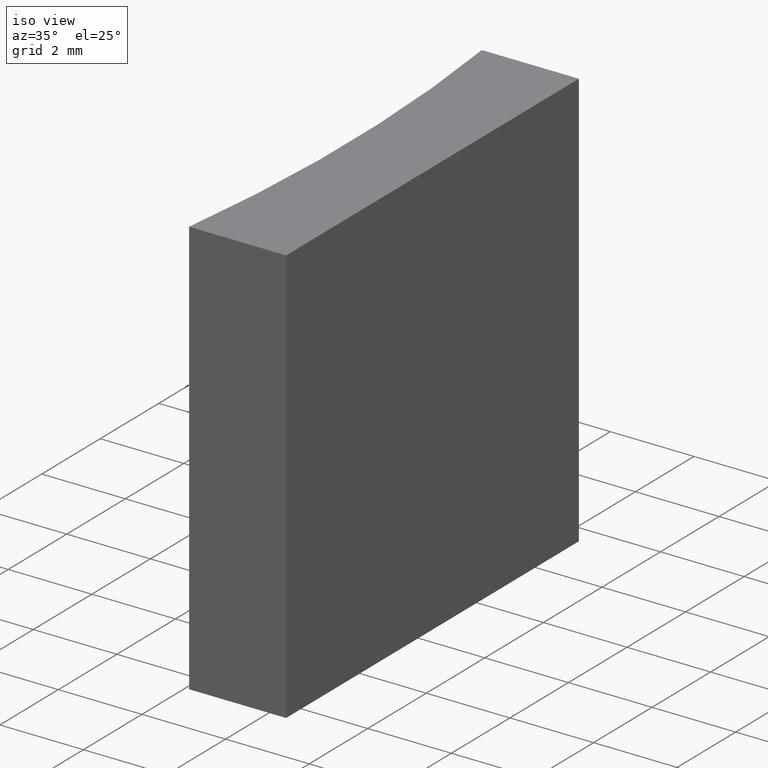
[diagram: clean part render]
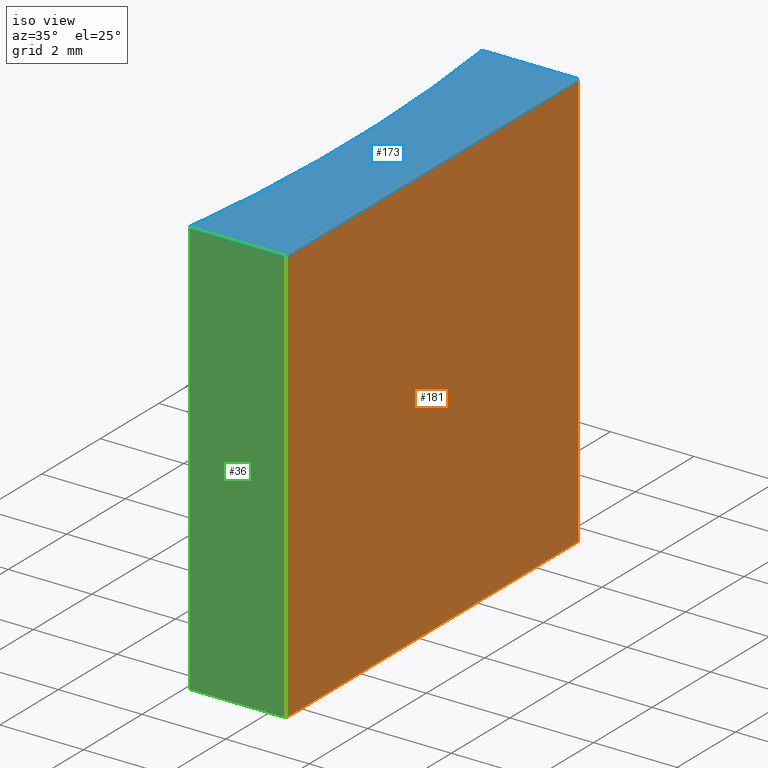
[diagram: same view with three faces highlighted in distinct colors, each labeled with its STEP entity id]
A machine part, iso view with three faces highlighted in distinct colors.
Their STEP definitions:

[orange] entity #181 — the highlighted planar face has unit normal (-1, -0, 0).
#8 = DIRECTION ( 'NONE',  ( -1.000000000000000000, -1.734723475976807094E-16, 0.000000000000000000 ) ) ;
#28 = CARTESIAN_POINT ( 'NONE',  ( 14.67556705474980561, -0.8958416501315611402, 10.00000000000000000 ) ) ;
#34 = VECTOR ( 'NONE', #63, 1000.000000000000000 ) ;
#44 = LINE ( 'NONE', #28, #136 ) ;
#54 = ORIENTED_EDGE ( 'NONE', *, *, #114, .T. ) ;
#59 = CARTESIAN_POINT ( 'NONE',  ( 14.67556705474980738, -10.89584165013156181, 0.000000000000000000 ) ) ;
#62 = EDGE_LOOP ( 'NONE', ( #54, #168, #93, #121 ) ) ;
#63 = DIRECTION ( 'NONE',  ( -1.734723475976807094E-16, 1.000000000000000000, -0.000000000000000000 ) ) ;
#76 = VERTEX_POINT ( 'NONE', #59 ) ;
#77 = AXIS2_PLACEMENT_3D ( 'NONE', #133, #8, #170 ) ;
#79 = VERTEX_POINT ( 'NONE', #237 ) ;
#93 = ORIENTED_EDGE ( 'NONE', *, *, #118, .F. ) ;
#94 = PLANE ( 'NONE',  #77 ) ;
#96 = EDGE_CURVE ( 'NONE', #219, #76, #104, .T. ) ;
#104 = LINE ( 'NONE', #130, #145 ) ;
#108 = VERTEX_POINT ( 'NONE', #147 ) ;
#114 = EDGE_CURVE ( 'NONE', #76, #79, #164, .T. ) ;
#115 = DIRECTION ( 'NONE',  ( -0.000000000000000000, -0.000000000000000000, -1.000000000000000000 ) ) ;
#118 = EDGE_CURVE ( 'NONE', #219, #108, #142, .T. ) ;
#121 = ORIENTED_EDGE ( 'NONE', *, *, #96, .T. ) ;
#127 = CARTESIAN_POINT ( 'NONE',  ( 14.67556705474980561, -0.8958416501315611402, 10.00000000000000000 ) ) ;
#130 = CARTESIAN_POINT ( 'NONE',  ( 14.67556705474980738, -10.89584165013156181, 10.00000000000000000 ) ) ;
#133 = CARTESIAN_POINT ( 'NONE',  ( 14.67556705474980561, -0.8958416501315611402, 10.00000000000000000 ) ) ;
#136 = VECTOR ( 'NONE', #115, 1000.000000000000000 ) ;
#142 = LINE ( 'NONE', #127, #204 ) ;
#143 = DIRECTION ( 'NONE',  ( -0.000000000000000000, -0.000000000000000000, -1.000000000000000000 ) ) ;
#145 = VECTOR ( 'NONE', #143, 1000.000000000000000 ) ;
#147 = CARTESIAN_POINT ( 'NONE',  ( 14.67556705474980561, -0.8958416501315611402, 10.00000000000000000 ) ) ;
#151 = CARTESIAN_POINT ( 'NONE',  ( 14.67556705474980738, -10.89584165013156181, 10.00000000000000000 ) ) ;
#164 = LINE ( 'NONE', #182, #34 ) ;
#168 = ORIENTED_EDGE ( 'NONE', *, *, #223, .F. ) ;
#170 = DIRECTION ( 'NONE',  ( 1.734723475976807094E-16, -1.000000000000000000, 0.000000000000000000 ) ) ;
#181 = ADVANCED_FACE ( 'NONE', ( #221 ), #94, .F. ) ;
#182 = CARTESIAN_POINT ( 'NONE',  ( 14.67556705474980561, -0.8958416501315611402, 0.000000000000000000 ) ) ;
#204 = VECTOR ( 'NONE', #217, 1000.000000000000000 ) ;
#217 = DIRECTION ( 'NONE',  ( -1.734723475976807094E-16, 1.000000000000000000, -0.000000000000000000 ) ) ;
#219 = VERTEX_POINT ( 'NONE', #151 ) ;
#221 = FACE_OUTER_BOUND ( 'NONE', #62, .T. ) ;
#223 = EDGE_CURVE ( 'NONE', #108, #79, #44, .T. ) ;
#237 = CARTESIAN_POINT ( 'NONE',  ( 14.67556705474980561, -0.8958416501315611402, 0.000000000000000000 ) ) ;

[blue] entity #173 — the highlighted planar face has unit normal (0, 0, 1).
#10 = EDGE_CURVE ( 'NONE', #165, #158, #72, .T. ) ;
#18 = LINE ( 'NONE', #163, #46 ) ;
#20 = DIRECTION ( 'NONE',  ( -0.000000000000000000, -0.000000000000000000, -1.000000000000000000 ) ) ;
#24 = DIRECTION ( 'NONE',  ( 1.000000000000000000, 0.000000000000000000, 0.000000000000000000 ) ) ;
#46 = VECTOR ( 'NONE', #24, 1000.000000000000000 ) ;
#47 = PLANE ( 'NONE',  #178 ) ;
#60 = EDGE_LOOP ( 'NONE', ( #202, #107, #203, #148 ) ) ;
#68 = FACE_OUTER_BOUND ( 'NONE', #60, .T. ) ;
#72 = CIRCLE ( 'NONE', #212, 38.78000000000000114 ) ;
#82 = LINE ( 'NONE', #226, #209 ) ;
#90 = CARTESIAN_POINT ( 'NONE',  ( -26.10075102173796324, -5.895841650131568024, 10.00000000000000000 ) ) ;
#97 = CARTESIAN_POINT ( 'NONE',  ( 12.35556705474980710, -0.8958416501315611402, 10.00000000000000000 ) ) ;
#107 = ORIENTED_EDGE ( 'NONE', *, *, #129, .T. ) ;
#108 = VERTEX_POINT ( 'NONE', #147 ) ;
#118 = EDGE_CURVE ( 'NONE', #219, #108, #142, .T. ) ;
#125 = DIRECTION ( 'NONE',  ( 1.000000000000000000, 0.000000000000000000, 0.000000000000000000 ) ) ;
#127 = CARTESIAN_POINT ( 'NONE',  ( 14.67556705474980561, -0.8958416501315611402, 10.00000000000000000 ) ) ;
#129 = EDGE_CURVE ( 'NONE', #158, #219, #18, .T. ) ;
#132 = DIRECTION ( 'NONE',  ( -1.000000000000000000, -0.000000000000000000, -0.000000000000000000 ) ) ;
#142 = LINE ( 'NONE', #127, #204 ) ;
#147 = CARTESIAN_POINT ( 'NONE',  ( 14.67556705474980561, -0.8958416501315611402, 10.00000000000000000 ) ) ;
#148 = ORIENTED_EDGE ( 'NONE', *, *, #206, .T. ) ;
#151 = CARTESIAN_POINT ( 'NONE',  ( 14.67556705474980738, -10.89584165013156181, 10.00000000000000000 ) ) ;
#154 = DIRECTION ( 'NONE',  ( 0.000000000000000000, 0.000000000000000000, 1.000000000000000000 ) ) ;
#158 = VERTEX_POINT ( 'NONE', #205 ) ;
#163 = CARTESIAN_POINT ( 'NONE',  ( 12.35556705474980888, -10.89584165013156181, 10.00000000000000000 ) ) ;
#165 = VERTEX_POINT ( 'NONE', #97 ) ;
#172 = DIRECTION ( 'NONE',  ( 1.000000000000000000, 0.000000000000000000, -0.000000000000000000 ) ) ;
#173 = ADVANCED_FACE ( 'NONE', ( #68 ), #47, .T. ) ;
#178 = AXIS2_PLACEMENT_3D ( 'NONE', #222, #154, #172 ) ;
#202 = ORIENTED_EDGE ( 'NONE', *, *, #10, .T. ) ;
#203 = ORIENTED_EDGE ( 'NONE', *, *, #118, .T. ) ;
#204 = VECTOR ( 'NONE', #217, 1000.000000000000000 ) ;
#205 = CARTESIAN_POINT ( 'NONE',  ( 12.35556705474980888, -10.89584165013156181, 10.00000000000000000 ) ) ;
#206 = EDGE_CURVE ( 'NONE', #108, #165, #82, .T. ) ;
#209 = VECTOR ( 'NONE', #132, 1000.000000000000000 ) ;
#212 = AXIS2_PLACEMENT_3D ( 'NONE', #90, #20, #125 ) ;
#217 = DIRECTION ( 'NONE',  ( -1.734723475976807094E-16, 1.000000000000000000, -0.000000000000000000 ) ) ;
#219 = VERTEX_POINT ( 'NONE', #151 ) ;
#222 = CARTESIAN_POINT ( 'NONE',  ( -26.10075102173796324, -5.895841650131568024, 10.00000000000000000 ) ) ;
#226 = CARTESIAN_POINT ( 'NONE',  ( 12.35556705474980710, -0.8958416501315611402, 10.00000000000000000 ) ) ;

[green] entity #36 — the highlighted planar face has unit normal (0, 1, 0).
#6 = DIRECTION ( 'NONE',  ( -0.000000000000000000, -0.000000000000000000, -1.000000000000000000 ) ) ;
#18 = LINE ( 'NONE', #163, #46 ) ;
#19 = DIRECTION ( 'NONE',  ( 0.000000000000000000, 1.000000000000000000, 0.000000000000000000 ) ) ;
#24 = DIRECTION ( 'NONE',  ( 1.000000000000000000, 0.000000000000000000, 0.000000000000000000 ) ) ;
#36 = ADVANCED_FACE ( 'NONE', ( #109 ), #106, .F. ) ;
#45 = LINE ( 'NONE', #224, #162 ) ;
#46 = VECTOR ( 'NONE', #24, 1000.000000000000000 ) ;
#58 = DIRECTION ( 'NONE',  ( 1.000000000000000000, 0.000000000000000000, 0.000000000000000000 ) ) ;
#59 = CARTESIAN_POINT ( 'NONE',  ( 14.67556705474980738, -10.89584165013156181, 0.000000000000000000 ) ) ;
#73 = DIRECTION ( 'NONE',  ( 0.000000000000000000, -0.000000000000000000, 1.000000000000000000 ) ) ;
#76 = VERTEX_POINT ( 'NONE', #59 ) ;
#78 = CARTESIAN_POINT ( 'NONE',  ( 12.35556705474980888, -10.89584165013156181, 0.000000000000000000 ) ) ;
#87 = AXIS2_PLACEMENT_3D ( 'NONE', #185, #19, #73 ) ;
#91 = ORIENTED_EDGE ( 'NONE', *, *, #191, .T. ) ;
#96 = EDGE_CURVE ( 'NONE', #219, #76, #104, .T. ) ;
#103 = VERTEX_POINT ( 'NONE', #78 ) ;
#104 = LINE ( 'NONE', #130, #145 ) ;
#106 = PLANE ( 'NONE',  #87 ) ;
#109 = FACE_OUTER_BOUND ( 'NONE', #169, .T. ) ;
#124 = ORIENTED_EDGE ( 'NONE', *, *, #96, .F. ) ;
#126 = VECTOR ( 'NONE', #58, 1000.000000000000000 ) ;
#128 = ORIENTED_EDGE ( 'NONE', *, *, #161, .T. ) ;
#129 = EDGE_CURVE ( 'NONE', #158, #219, #18, .T. ) ;
#130 = CARTESIAN_POINT ( 'NONE',  ( 14.67556705474980738, -10.89584165013156181, 10.00000000000000000 ) ) ;
#143 = DIRECTION ( 'NONE',  ( -0.000000000000000000, -0.000000000000000000, -1.000000000000000000 ) ) ;
#144 = ORIENTED_EDGE ( 'NONE', *, *, #129, .F. ) ;
#145 = VECTOR ( 'NONE', #143, 1000.000000000000000 ) ;
#151 = CARTESIAN_POINT ( 'NONE',  ( 14.67556705474980738, -10.89584165013156181, 10.00000000000000000 ) ) ;
#158 = VERTEX_POINT ( 'NONE', #205 ) ;
#161 = EDGE_CURVE ( 'NONE', #103, #76, #218, .T. ) ;
#162 = VECTOR ( 'NONE', #6, 1000.000000000000000 ) ;
#163 = CARTESIAN_POINT ( 'NONE',  ( 12.35556705474980888, -10.89584165013156181, 10.00000000000000000 ) ) ;
#169 = EDGE_LOOP ( 'NONE', ( #128, #124, #144, #91 ) ) ;
#185 = CARTESIAN_POINT ( 'NONE',  ( 12.35556705474980888, -10.89584165013156181, 10.00000000000000000 ) ) ;
#191 = EDGE_CURVE ( 'NONE', #158, #103, #45, .T. ) ;
#199 = CARTESIAN_POINT ( 'NONE',  ( 12.35556705474980888, -10.89584165013156181, 0.000000000000000000 ) ) ;
#205 = CARTESIAN_POINT ( 'NONE',  ( 12.35556705474980888, -10.89584165013156181, 10.00000000000000000 ) ) ;
#218 = LINE ( 'NONE', #199, #126 ) ;
#219 = VERTEX_POINT ( 'NONE', #151 ) ;
#224 = CARTESIAN_POINT ( 'NONE',  ( 12.35556705474980888, -10.89584165013156181, 10.00000000000000000 ) ) ;